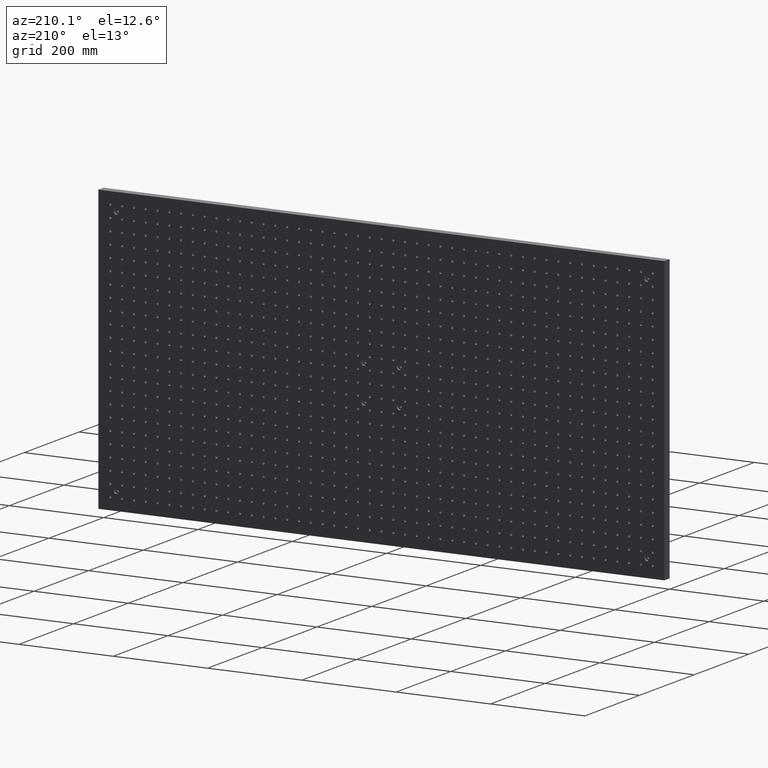
[diagram: clean part render]
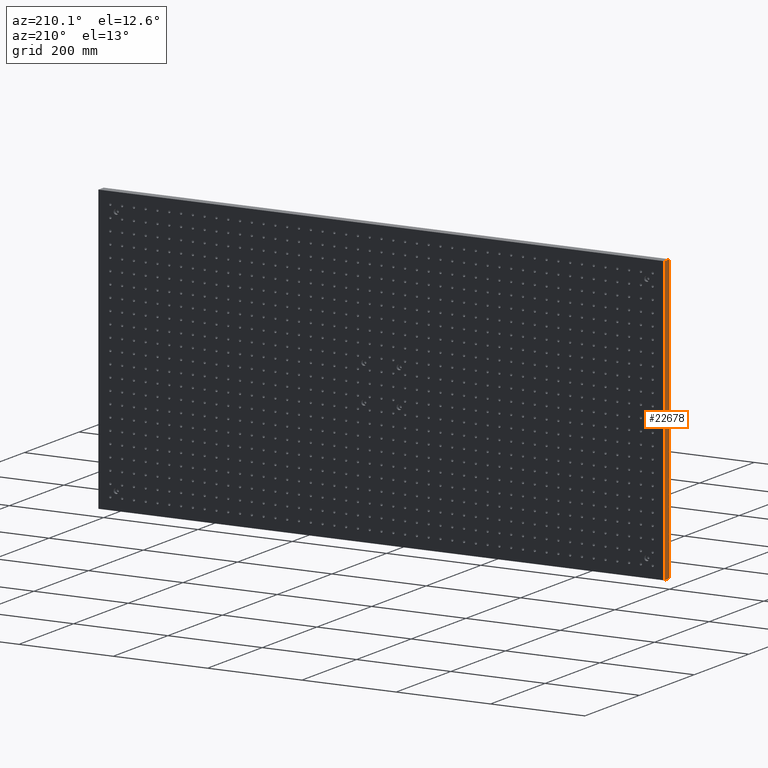
[diagram: same view with one face highlighted and labeled with its STEP entity id]
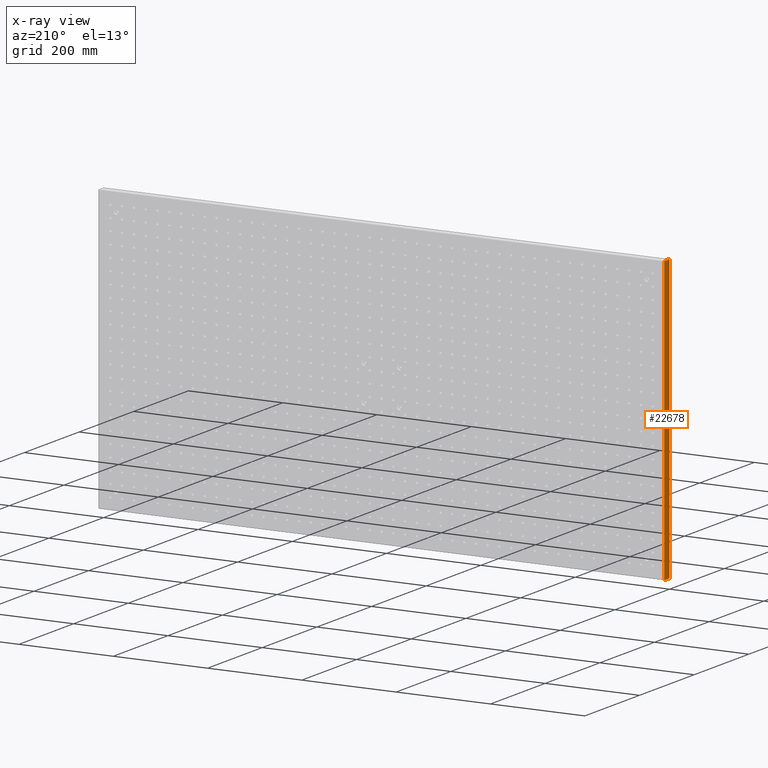
[diagram: x-ray of the same camera — body ghosted, the highlighted face saturated]
A machine part, auxiliary view. The second image highlights one B-rep face of the part: STEP entity #22678.
The next image is the same camera in x-ray: the body ghosted, the highlighted face saturated — about 0% of this face is hidden behind the body in this view.
In plain terms, the highlighted planar face has unit normal (1, -0, 0).
Its self-contained STEP definition (entity closure, byte-faithful):
#1249 = VECTOR ( 'NONE', #10010, 1000.000000000000000 ) ;
#1450 = CARTESIAN_POINT ( 'NONE',  ( -599.9999999999998863, 0.000000000000000000, -299.9999999999998295 ) ) ;
#1780 = EDGE_CURVE ( 'NONE', #32045, #29099, #19450, .T. ) ;
#1828 = LINE ( 'NONE', #1450, #4381 ) ;
#4248 = EDGE_CURVE ( 'NONE', #26893, #29099, #5547, .T. ) ;
#4381 = VECTOR ( 'NONE', #7127, 1000.000000000000000 ) ;
#5547 = LINE ( 'NONE', #28920, #20569 ) ;
#5739 = ORIENTED_EDGE ( 'NONE', *, *, #1780, .F. ) ;
#5746 = EDGE_CURVE ( 'NONE', #22897, #32045, #12477, .T. ) ;
#5934 = ORIENTED_EDGE ( 'NONE', *, *, #18448, .T. ) ;
#7127 = DIRECTION ( 'NONE',  ( -0.000000000000000000, -0.000000000000000000, 1.000000000000000000 ) ) ;
#7777 = CARTESIAN_POINT ( 'NONE',  ( -599.9999999999998863, 0.000000000000000000, 300.0000000000001705 ) ) ;
#8368 = ORIENTED_EDGE ( 'NONE', *, *, #4248, .T. ) ;
#9705 = FACE_OUTER_BOUND ( 'NONE', #10182, .T. ) ;
#10010 = DIRECTION ( 'NONE',  ( 0.000000000000000000, 1.000000000000000000, 0.000000000000000000 ) ) ;
#10182 = EDGE_LOOP ( 'NONE', ( #8368, #5739, #12166, #5934 ) ) ;
#10999 = CARTESIAN_POINT ( 'NONE',  ( -599.9999999999998863, 0.000000000000000000, -299.9999999999998295 ) ) ;
#12166 = ORIENTED_EDGE ( 'NONE', *, *, #5746, .F. ) ;
#12477 = LINE ( 'NONE', #21761, #1249 ) ;
#13119 = CARTESIAN_POINT ( 'NONE',  ( -599.9999999999998863, 19.00000000000000000, -299.9999999999998295 ) ) ;
#13201 = CARTESIAN_POINT ( 'NONE',  ( -599.9999999999998863, 19.00000000000000000, 0.000000000000000000 ) ) ;
#15026 = CARTESIAN_POINT ( 'NONE',  ( -599.9999999999998863, 19.00000000000000000, 300.0000000000001705 ) ) ;
#15411 = DIRECTION ( 'NONE',  ( 0.000000000000000000, 0.000000000000000000, -1.000000000000000000 ) ) ;
#17123 = DIRECTION ( 'NONE',  ( 0.000000000000000000, 1.000000000000000000, 0.000000000000000000 ) ) ;
#18240 = PLANE ( 'NONE',  #18250 ) ;
#18250 = AXIS2_PLACEMENT_3D ( 'NONE', #29837, #36107, #15411 ) ;
#18448 = EDGE_CURVE ( 'NONE', #22897, #26893, #1828, .T. ) ;
#19450 = LINE ( 'NONE', #13201, #36178 ) ;
#20569 = VECTOR ( 'NONE', #17123, 1000.000000000000000 ) ;
#21761 = CARTESIAN_POINT ( 'NONE',  ( -599.9999999999998863, 19.00000000000000000, -299.9999999999998295 ) ) ;
#22678 = ADVANCED_FACE ( 'NONE', ( #9705 ), #18240, .F. ) ;
#22897 = VERTEX_POINT ( 'NONE', #10999 ) ;
#26893 = VERTEX_POINT ( 'NONE', #7777 ) ;
#28920 = CARTESIAN_POINT ( 'NONE',  ( -599.9999999999998863, 19.00000000000000000, 300.0000000000001705 ) ) ;
#29099 = VERTEX_POINT ( 'NONE', #15026 ) ;
#29837 = CARTESIAN_POINT ( 'NONE',  ( -599.9999999999998863, 19.00000000000000000, -299.9999999999998295 ) ) ;
#31037 = DIRECTION ( 'NONE',  ( 0.000000000000000000, -0.000000000000000000, 1.000000000000000000 ) ) ;
#32045 = VERTEX_POINT ( 'NONE', #13119 ) ;
#36107 = DIRECTION ( 'NONE',  ( 1.000000000000000000, -0.000000000000000000, 0.000000000000000000 ) ) ;
#36178 = VECTOR ( 'NONE', #31037, 1000.000000000000000 ) ;